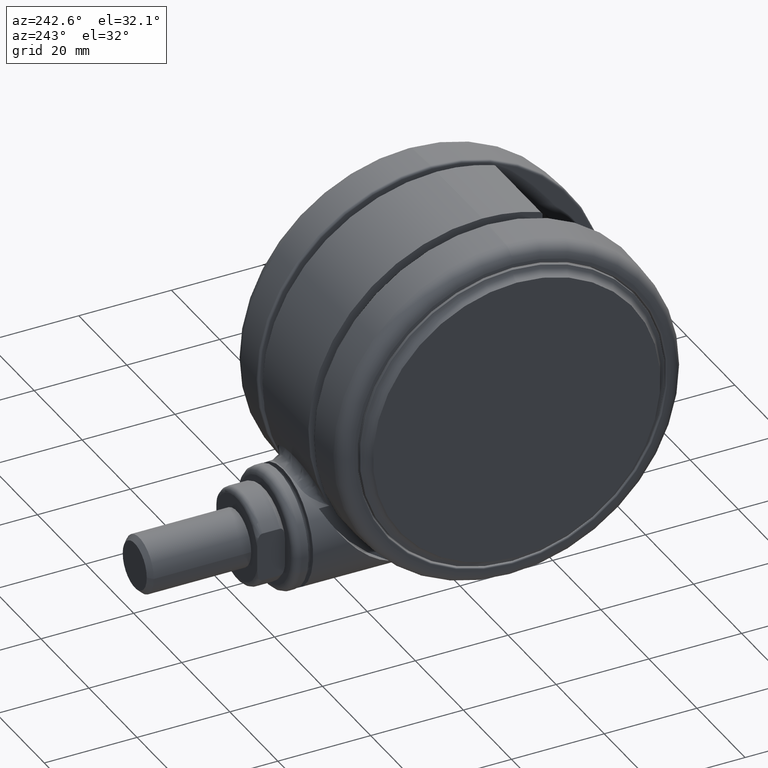
[diagram: clean part render]
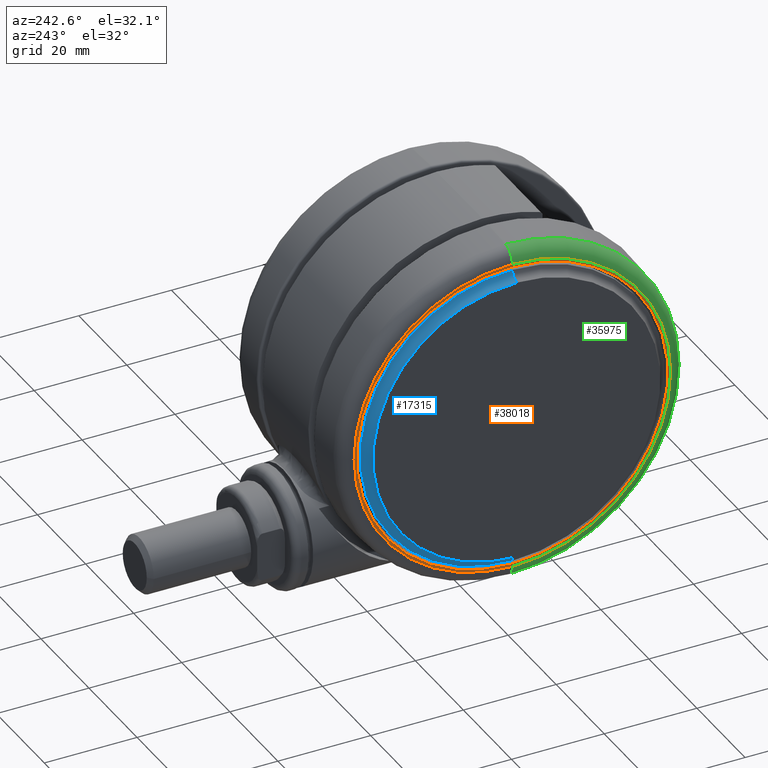
[diagram: same view with three faces highlighted in distinct colors, each labeled with its STEP entity id]
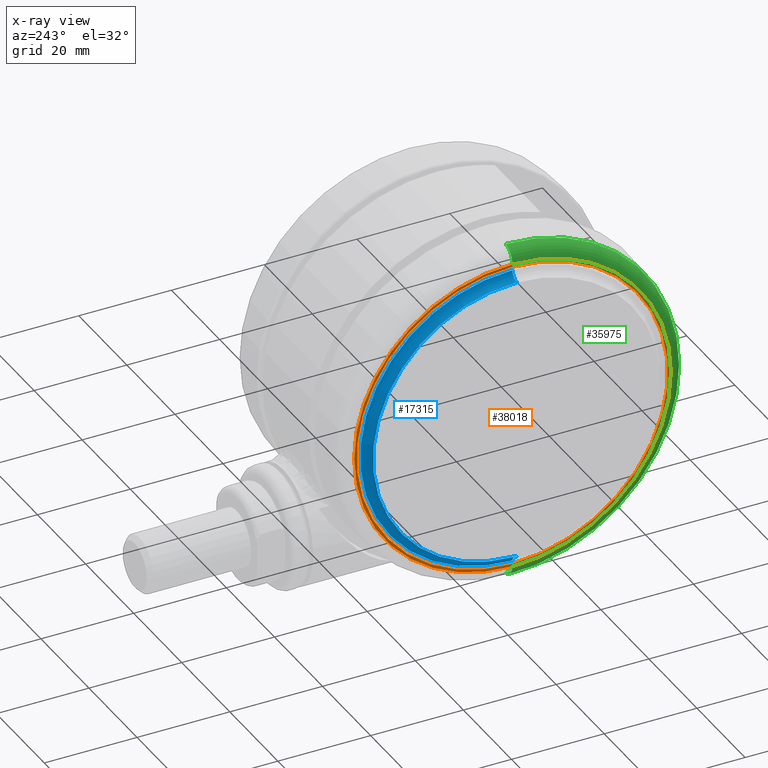
[diagram: x-ray of the same camera — body ghosted, the three highlighted faces saturated]
A machine part, auxiliary view with three faces highlighted in distinct colors.
The next image is the same camera in x-ray (body ghosted, the three faces saturated) — at least one of them is partly hidden behind the body in this view.
Their STEP definitions:

[orange] entity #38018 — the highlighted planar face has unit normal (-1, 0, 0).
#32 = CARTESIAN_POINT ( 'NONE',  ( 1.117824496769200400E-013, -34.13039991264666600, -45.90000000000007700 ) ) ;
#3163 = DIRECTION ( 'NONE',  ( 3.275157922644210200E-015, -1.000000000000000000, 0.0000000000000000000 ) ) ;
#3309 = DIRECTION ( 'NONE',  ( 0.0000000000000000000, -0.0000000000000000000, -1.000000000000000000 ) ) ;
#5520 = AXIS2_PLACEMENT_3D ( 'NONE', #56806, #29956, #3163 ) ;
#5634 = ORIENTED_EDGE ( 'NONE', *, *, #33228, .F. ) ;
#7002 = VERTEX_POINT ( 'NONE', #33817 ) ;
#9819 = ORIENTED_EDGE ( 'NONE', *, *, #22045, .T. ) ;
#12378 = CARTESIAN_POINT ( 'NONE',  ( 1.098815483047132700E-013, -33.54999999999999000, -45.90000000000009100 ) ) ;
#12871 = EDGE_LOOP ( 'NONE', ( #9819, #44748 ) ) ;
#16686 = CARTESIAN_POINT ( 'NONE',  ( 0.0000000000000000000, 1.387778780781445700E-014, -45.90000000000007700 ) ) ;
#16866 = DIRECTION ( 'NONE',  ( 0.0000000000000000000, -0.0000000000000000000, -1.000000000000000000 ) ) ;
#21203 = DIRECTION ( 'NONE',  ( 3.275157922644210200E-015, -1.000000000000000000, 0.0000000000000000000 ) ) ;
#21216 = DIRECTION ( 'NONE',  ( 0.0000000000000000000, -0.0000000000000000000, -1.000000000000000000 ) ) ;
#21361 = CARTESIAN_POINT ( 'NONE',  ( -1.139902383158526300E-013, 33.55000000000001800, -45.90000000000011200 ) ) ;
#21398 = DIRECTION ( 'NONE',  ( 3.275157922644210200E-015, -1.000000000000000000, 0.0000000000000000000 ) ) ;
#22045 = EDGE_CURVE ( 'NONE', #34341, #27905, #26391, .T. ) ;
#22895 = AXIS2_PLACEMENT_3D ( 'NONE', #30115, #3309, #34619 ) ;
#23253 = CIRCLE ( 'NONE', #5520, 33.55000000000000400 ) ;
#26391 = CIRCLE ( 'NONE', #52690, 34.13039991264668100 ) ;
#26760 = EDGE_CURVE ( 'NONE', #27905, #34341, #45932, .T. ) ;
#27905 = VERTEX_POINT ( 'NONE', #49937 ) ;
#29018 = AXIS2_PLACEMENT_3D ( 'NONE', #12378, #21216, #21398 ) ;
#29956 = DIRECTION ( 'NONE',  ( 0.0000000000000000000, -0.0000000000000000000, -1.000000000000000000 ) ) ;
#30115 = CARTESIAN_POINT ( 'NONE',  ( 0.0000000000000000000, 1.387778780781445700E-014, -45.90000000000011200 ) ) ;
#33021 = AXIS2_PLACEMENT_3D ( 'NONE', #43686, #16866, #48142 ) ;
#33228 = EDGE_CURVE ( 'NONE', #7002, #39589, #23253, .T. ) ;
#33817 = CARTESIAN_POINT ( 'NONE',  ( 1.098815483047132700E-013, -33.54999999999999000, -45.90000000000011200 ) ) ;
#34341 = VERTEX_POINT ( 'NONE', #32 ) ;
#34619 = DIRECTION ( 'NONE',  ( 3.275157922644210200E-015, -1.000000000000000000, 0.0000000000000000000 ) ) ;
#38018 = ADVANCED_FACE ( 'NONE', ( #44532, #56452 ), #48171, .T. ) ;
#39589 = VERTEX_POINT ( 'NONE', #21361 ) ;
#41819 = ORIENTED_EDGE ( 'NONE', *, *, #53603, .F. ) ;
#43259 = EDGE_LOOP ( 'NONE', ( #5634, #41819 ) ) ;
#43686 = CARTESIAN_POINT ( 'NONE',  ( 0.0000000000000000000, 1.387778780781445700E-014, -45.90000000000007700 ) ) ;
#44532 = FACE_OUTER_BOUND ( 'NONE', #12871, .T. ) ;
#44748 = ORIENTED_EDGE ( 'NONE', *, *, #26760, .T. ) ;
#45932 = CIRCLE ( 'NONE', #33021, 34.13039991264668100 ) ;
#47965 = DIRECTION ( 'NONE',  ( 0.0000000000000000000, -0.0000000000000000000, -1.000000000000000000 ) ) ;
#48142 = DIRECTION ( 'NONE',  ( 3.275157922644210200E-015, -1.000000000000000000, 0.0000000000000000000 ) ) ;
#48171 = PLANE ( 'NONE',  #29018 ) ;
#49937 = CARTESIAN_POINT ( 'NONE',  ( -1.210516675958817800E-013, 34.13039991264669500, -45.90000000000007700 ) ) ;
#52690 = AXIS2_PLACEMENT_3D ( 'NONE', #16686, #47965, #21203 ) ;
#53603 = EDGE_CURVE ( 'NONE', #39589, #7002, #53986, .T. ) ;
#53986 = CIRCLE ( 'NONE', #22895, 33.55000000000000400 ) ;
#56452 = FACE_BOUND ( 'NONE', #43259, .T. ) ;
#56806 = CARTESIAN_POINT ( 'NONE',  ( 0.0000000000000000000, 1.387778780781445700E-014, -45.90000000000011200 ) ) ;

[blue] entity #17315 — the highlighted toroidal blend (fillet) surface has major radius 33.1663 mm and minor (blend) radius 2.2 mm.
#3547 = DIRECTION ( 'NONE',  ( 3.275157922644210200E-015, -1.000000000000000000, 0.0000000000000000000 ) ) ;
#3559 = EDGE_CURVE ( 'NONE', #33535, #45443, #19609, .T. ) ;
#5011 = VERTEX_POINT ( 'NONE', #24596 ) ;
#5237 = CIRCLE ( 'NONE', #30204, 2.200000000000000600 ) ;
#11344 = ORIENTED_EDGE ( 'NONE', *, *, #46275, .T. ) ;
#11465 = FACE_OUTER_BOUND ( 'NONE', #30685, .T. ) ;
#13367 = CARTESIAN_POINT ( 'NONE',  ( -1.126864294279262000E-013, 33.16625847233755300, -48.08382838746734900 ) ) ;
#15985 = CARTESIAN_POINT ( 'NONE',  ( 1.086247342001420000E-013, -33.16625847233755300, -48.08382838746734900 ) ) ;
#17315 = ADVANCED_FACE ( 'NONE', ( #11465 ), #57732, .F. ) ;
#17885 = DIRECTION ( 'NONE',  ( 3.397622602558946200E-015, -1.000000000000000000, 0.0000000000000000000 ) ) ;
#19609 = CIRCLE ( 'NONE', #23353, 31.00000000000000000 ) ;
#20366 = CIRCLE ( 'NONE', #36438, 32.81592428140525200 ) ;
#20514 = DIRECTION ( 'NONE',  ( -3.275157922644209000E-015, 1.000000000000000000, 0.0000000000000000000 ) ) ;
#22882 = EDGE_CURVE ( 'NONE', #33535, #5011, #5237, .T. ) ;
#23353 = AXIS2_PLACEMENT_3D ( 'NONE', #57195, #30369, #3547 ) ;
#23621 = VERTEX_POINT ( 'NONE', #36054 ) ;
#23711 = CARTESIAN_POINT ( 'NONE',  ( 0.0000000000000000000, 0.0000000000000000000, -45.91190160355301200 ) ) ;
#24272 = CIRCLE ( 'NONE', #50259, 2.200000000000000600 ) ;
#24378 = ORIENTED_EDGE ( 'NONE', *, *, #3559, .F. ) ;
#24596 = CARTESIAN_POINT ( 'NONE',  ( 1.074773343991852500E-013, -32.81592428142001000, -45.91190160355301200 ) ) ;
#26118 = DIRECTION ( 'NONE',  ( 3.275157922644210600E-015, -1.000000000000000000, 0.0000000000000000000 ) ) ;
#26441 = EDGE_CURVE ( 'NONE', #45443, #23621, #24272, .T. ) ;
#28167 = DIRECTION ( 'NONE',  ( 3.275157922644209800E-015, -1.000000000000000000, 0.0000000000000000000 ) ) ;
#30204 = AXIS2_PLACEMENT_3D ( 'NONE', #15985, #47281, #20514 ) ;
#30369 = DIRECTION ( 'NONE',  ( 0.0000000000000000000, -0.0000000000000000000, -1.000000000000000000 ) ) ;
#30685 = EDGE_LOOP ( 'NONE', ( #37273, #24378, #42127, #11344 ) ) ;
#32999 = CARTESIAN_POINT ( 'NONE',  ( 1.015298956019705200E-013, -31.00000000000000000, -47.69999999999995300 ) ) ;
#33535 = VERTEX_POINT ( 'NONE', #32999 ) ;
#33847 = AXIS2_PLACEMENT_3D ( 'NONE', #43911, #52927, #26118 ) ;
#36054 = CARTESIAN_POINT ( 'NONE',  ( -1.114961260624155300E-013, 32.81592428142001000, -45.91190160355301200 ) ) ;
#36438 = AXIS2_PLACEMENT_3D ( 'NONE', #23711, #55015, #28167 ) ;
#37273 = ORIENTED_EDGE ( 'NONE', *, *, #26441, .F. ) ;
#42127 = ORIENTED_EDGE ( 'NONE', *, *, #22882, .T. ) ;
#43911 = CARTESIAN_POINT ( 'NONE',  ( 0.0000000000000000000, 0.0000000000000000000, -48.08382838746734900 ) ) ;
#44687 = DIRECTION ( 'NONE',  ( -1.000000000000000000, -3.397622602558945400E-015, 0.0000000000000000000 ) ) ;
#45443 = VERTEX_POINT ( 'NONE', #47274 ) ;
#46275 = EDGE_CURVE ( 'NONE', #5011, #23621, #20366, .T. ) ;
#47274 = CARTESIAN_POINT ( 'NONE',  ( -1.084112133708476300E-013, 31.00000000000000000, -47.69999999999995300 ) ) ;
#47281 = DIRECTION ( 'NONE',  ( 1.000000000000000000, 3.275157922644210200E-015, 0.0000000000000000000 ) ) ;
#50259 = AXIS2_PLACEMENT_3D ( 'NONE', #13367, #44687, #17885 ) ;
#52927 = DIRECTION ( 'NONE',  ( 0.0000000000000000000, -0.0000000000000000000, -1.000000000000000000 ) ) ;
#55015 = DIRECTION ( 'NONE',  ( 0.0000000000000000000, -0.0000000000000000000, -1.000000000000000000 ) ) ;
#57195 = CARTESIAN_POINT ( 'NONE',  ( 0.0000000000000000000, 0.0000000000000000000, -47.69999999999995300 ) ) ;
#57732 = TOROIDAL_SURFACE ( 'NONE', #33847, 33.16625847233755300, 2.200000000000000200 ) ;

[green] entity #35975 — the highlighted toroidal blend (fillet) surface has major radius 34.1304 mm and minor (blend) radius 3 mm.
#32 = CARTESIAN_POINT ( 'NONE',  ( 1.117824496769200400E-013, -34.13039991264666600, -45.90000000000007700 ) ) ;
#2076 = ORIENTED_EDGE ( 'NONE', *, *, #47850, .T. ) ;
#2106 = VERTEX_POINT ( 'NONE', #10084 ) ;
#2382 = AXIS2_PLACEMENT_3D ( 'NONE', #42318, #15494, #46781 ) ;
#4414 = DIRECTION ( 'NONE',  ( 0.0000000000000000000, -0.0000000000000000000, -1.000000000000000000 ) ) ;
#7423 = CIRCLE ( 'NONE', #2382, 2.999999999999988900 ) ;
#7584 = AXIS2_PLACEMENT_3D ( 'NONE', #9281, #40604, #13781 ) ;
#9281 = CARTESIAN_POINT ( 'NONE',  ( 0.0000000000000000000, 1.387778780781445700E-014, -43.05700786872890300 ) ) ;
#10084 = CARTESIAN_POINT ( 'NONE',  ( 1.215944579745338400E-013, -37.12628851691037800, -43.05700786872890300 ) ) ;
#13408 = DIRECTION ( 'NONE',  ( 3.275157922644210200E-015, -1.000000000000000000, 0.0000000000000000000 ) ) ;
#13781 = DIRECTION ( 'NONE',  ( 3.275157922644210200E-015, -1.000000000000000000, 0.0000000000000000000 ) ) ;
#15494 = DIRECTION ( 'NONE',  ( 1.000000000000000000, 3.275157922644210200E-015, 0.0000000000000000000 ) ) ;
#16866 = DIRECTION ( 'NONE',  ( 0.0000000000000000000, -0.0000000000000000000, -1.000000000000000000 ) ) ;
#20759 = CARTESIAN_POINT ( 'NONE',  ( -1.261411170141793800E-013, 37.12628851691040700, -43.05700786872890300 ) ) ;
#20828 = DIRECTION ( 'NONE',  ( -1.000000000000000000, -3.397622602558945400E-015, 0.0000000000000000000 ) ) ;
#23953 = VERTEX_POINT ( 'NONE', #20759 ) ;
#25984 = AXIS2_PLACEMENT_3D ( 'NONE', #26732, #4414, #13408 ) ;
#26732 = CARTESIAN_POINT ( 'NONE',  ( 0.0000000000000000000, 1.387778780781445700E-014, -42.90000000000009100 ) ) ;
#26760 = EDGE_CURVE ( 'NONE', #27905, #34341, #45932, .T. ) ;
#27905 = VERTEX_POINT ( 'NONE', #49937 ) ;
#29371 = EDGE_CURVE ( 'NONE', #23953, #27905, #37361, .T. ) ;
#33021 = AXIS2_PLACEMENT_3D ( 'NONE', #43686, #16866, #48142 ) ;
#34341 = VERTEX_POINT ( 'NONE', #32 ) ;
#34912 = TOROIDAL_SURFACE ( 'NONE', #25984, 34.13039991264668100, 2.999999999999988000 ) ;
#35975 = ADVANCED_FACE ( 'NONE', ( #36327 ), #34912, .T. ) ;
#36327 = FACE_OUTER_BOUND ( 'NONE', #48091, .T. ) ;
#37361 = CIRCLE ( 'NONE', #41802, 2.999999999999988900 ) ;
#40604 = DIRECTION ( 'NONE',  ( 0.0000000000000000000, -0.0000000000000000000, -1.000000000000000000 ) ) ;
#41802 = AXIS2_PLACEMENT_3D ( 'NONE', #47608, #20828, #52136 ) ;
#42318 = CARTESIAN_POINT ( 'NONE',  ( 1.117824496769200400E-013, -34.13039991264666600, -42.90000000000009100 ) ) ;
#42660 = CIRCLE ( 'NONE', #7584, 37.12628851691039200 ) ;
#43686 = CARTESIAN_POINT ( 'NONE',  ( 0.0000000000000000000, 1.387778780781445700E-014, -45.90000000000007700 ) ) ;
#45932 = CIRCLE ( 'NONE', #33021, 34.13039991264668100 ) ;
#46781 = DIRECTION ( 'NONE',  ( -3.275157922644208200E-015, 1.000000000000000000, 0.0000000000000000000 ) ) ;
#47608 = CARTESIAN_POINT ( 'NONE',  ( -1.159622181775842100E-013, 34.13039991264669500, -42.90000000000009100 ) ) ;
#47850 = EDGE_CURVE ( 'NONE', #23953, #2106, #42660, .T. ) ;
#48091 = EDGE_LOOP ( 'NONE', ( #49565, #2076, #49351, #57605 ) ) ;
#48142 = DIRECTION ( 'NONE',  ( 3.275157922644210200E-015, -1.000000000000000000, 0.0000000000000000000 ) ) ;
#49351 = ORIENTED_EDGE ( 'NONE', *, *, #56254, .T. ) ;
#49565 = ORIENTED_EDGE ( 'NONE', *, *, #29371, .F. ) ;
#49937 = CARTESIAN_POINT ( 'NONE',  ( -1.210516675958817800E-013, 34.13039991264669500, -45.90000000000007700 ) ) ;
#52136 = DIRECTION ( 'NONE',  ( 3.397622602558943800E-015, -1.000000000000000000, 0.0000000000000000000 ) ) ;
#56254 = EDGE_CURVE ( 'NONE', #2106, #34341, #7423, .T. ) ;
#57605 = ORIENTED_EDGE ( 'NONE', *, *, #26760, .F. ) ;